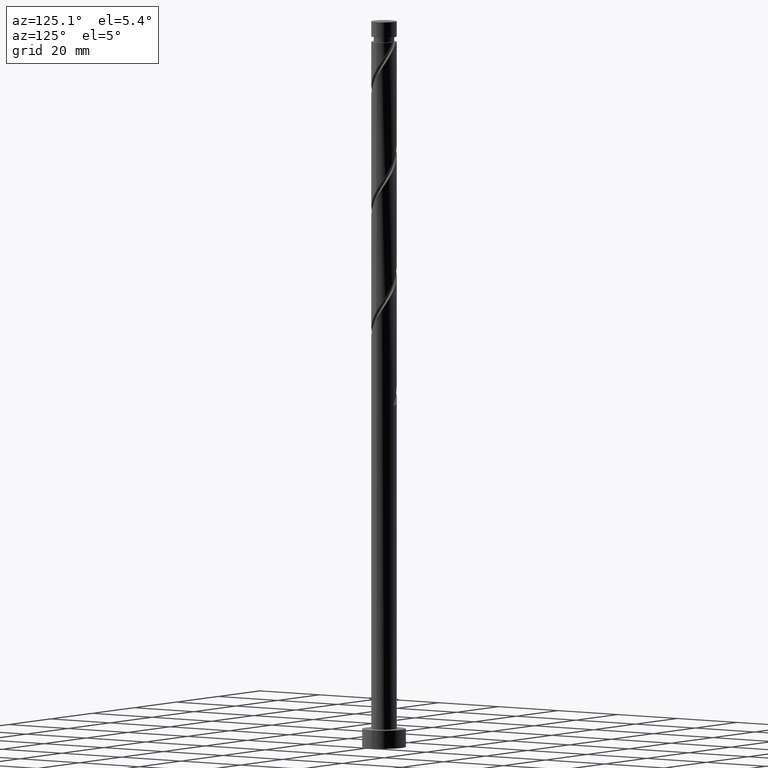
[diagram: clean part render]
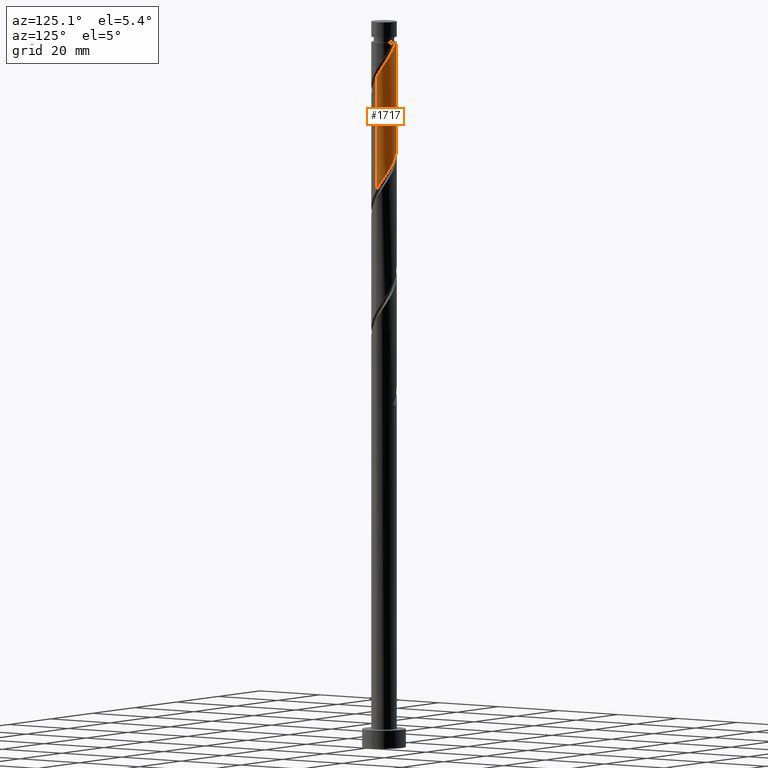
[diagram: same view with one face highlighted and labeled with its STEP entity id]
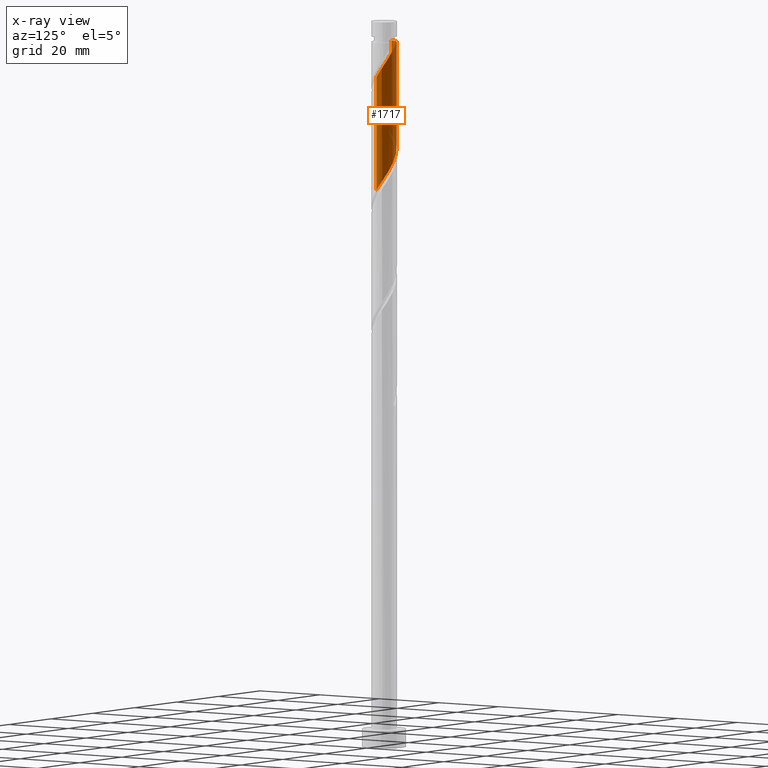
[diagram: x-ray of the same camera — body ghosted, the highlighted face saturated]
A machine part, auxiliary view. The second image highlights one B-rep face of the part: STEP entity #1717.
The next image is the same camera in x-ray: the body ghosted, the highlighted face saturated — about 0% of this face is hidden behind the body in this view.
In plain terms, the highlighted cylindrical surface (edge-blend (fillet) strip) has radius 3.5 mm, axis along (-0, -0, -1).
Its self-contained STEP definition (entity closure, byte-faithful):
#2 = CARTESIAN_POINT ( 'NONE',  ( 3.500000000000000444, 4.994564004169114618E-15, 153.7891649966503280 ) ) ;
#19 = EDGE_CURVE ( 'NONE', #815, #753, #630, .T. ) ;
#26 = ORIENTED_EDGE ( 'NONE', *, *, #19, .F. ) ;
#59 = EDGE_CURVE ( 'NONE', #582, #753, #647, .T. ) ;
#79 = CARTESIAN_POINT ( 'NONE',  ( -3.430000000000000160, 0.6964912059746349859, 169.3922650081069321 ) ) ;
#84 = CARTESIAN_POINT ( 'NONE',  ( 3.500000000000005329, -1.106580048827880409E-15, 184.9953650195635362 ) ) ;
#86 = CARTESIAN_POINT ( 'NONE',  ( -0.6749041013849218507, 3.465086739234107593, 163.1422650081069321 ) ) ;
#94 = DIRECTION ( 'NONE',  ( -0.000000000000000000, -0.000000000000000000, -1.000000000000000000 ) ) ;
#100 = CARTESIAN_POINT ( 'NONE',  ( 3.500000000000000000, 4.286263797015736595E-16, 200.0000000000000000 ) ) ;
#118 = CARTESIAN_POINT ( 'NONE',  ( 3.493390773024161788, 0.2149904810675258293, 154.1144872303291322 ) ) ;
#128 = CARTESIAN_POINT ( 'NONE',  ( 2.318179077886495243, 2.622221531993306431, 158.2811538969957610 ) ) ;
#155 = ORIENTED_EDGE ( 'NONE', *, *, #389, .T. ) ;
#181 = CARTESIAN_POINT ( 'NONE',  ( 2.927415597451915819, 1.972957063972127445, 188.1422650081068753 ) ) ;
#185 = ORIENTED_EDGE ( 'NONE', *, *, #1059, .F. ) ;
#231 = CARTESIAN_POINT ( 'NONE',  ( 3.172338736701779460, 1.548737742842088094, 156.1978205636625034 ) ) ;
#246 = CARTESIAN_POINT ( 'NONE',  ( 3.465086739234108482, 0.6749041013849197412, 154.8089316747736746 ) ) ;
#261 = FACE_OUTER_BOUND ( 'NONE', #1047, .T. ) ;
#291 = CARTESIAN_POINT ( 'NONE',  ( -3.499999999999988454, 0.000000000000000000, 194.3922650081069321 ) ) ;
#326 = CARTESIAN_POINT ( 'NONE',  ( -1.932882604688397787, 2.917869914251318697, 165.2255983414402749 ) ) ;
#339 = AXIS2_PLACEMENT_3D ( 'NONE', #1399, #94, #1250 ) ;
#341 = VECTOR ( 'NONE', #636, 1000.000000000000000 ) ;
#356 = CARTESIAN_POINT ( 'NONE',  ( -0.2149904810675273836, 3.493390773024161788, 162.4478205636625319 ) ) ;
#374 = CARTESIAN_POINT ( 'NONE',  ( 2.663401091800861931, 2.317027466534703262, 157.5867094525513892 ) ) ;
#389 = EDGE_CURVE ( 'NONE', #831, #1733, #1225, .T. ) ;
#398 = DIRECTION ( 'NONE',  ( -0.000000000000000000, -0.000000000000000000, -1.000000000000000000 ) ) ;
#460 = CARTESIAN_POINT ( 'NONE',  ( 3.430000000000005045, 0.6964912059746347639, 186.0589316747736461 ) ) ;
#490 = CARTESIAN_POINT ( 'NONE',  ( -1.548737742842090315, 3.172338736701779016, 164.5311538969958463 ) ) ;
#503 = CARTESIAN_POINT ( 'NONE',  ( -3.132860395318846081, 1.560508168335765333, 168.0033761192180748 ) ) ;
#507 = LINE ( 'NONE', #1727, #341 ) ;
#550 = ORIENTED_EDGE ( 'NONE', *, *, #1146, .F. ) ;
#582 = VERTEX_POINT ( 'NONE', #84 ) ;
#585 = CARTESIAN_POINT ( 'NONE',  ( 3.500000000000005329, -1.106580048827880409E-15, 184.9953650195635362 ) ) ;
#616 = CARTESIAN_POINT ( 'NONE',  ( -3.338305193185782116, 1.148059272699403222, 168.6978205636625319 ) ) ;
#628 = CARTESIAN_POINT ( 'NONE',  ( -0.2449231392498682214, 3.521694806814223089, 193.6978205636625034 ) ) ;
#630 =( BOUNDED_CURVE ( )  B_SPLINE_CURVE ( 2, ( #999, #1705, #79, #616, #503, #1533, #1689, #1698, #326, #490, #757, #86, #356, #893, #1419, #767, #1174, #909, #128, #374, #1712, #231, #670, #246, #118, #1723, #1575 ),
 .UNSPECIFIED., .F., .T. ) 
 B_SPLINE_CURVE_WITH_KNOTS ( ( 3, 2, 2, 2, 2, 2, 2, 2, 2, 2, 2, 2, 2, 3 ),
 ( 0.4295317669814462946, 0.4375000000000000000, 0.4479166666666666852, 0.4583333333333333148, 0.4687500000000000000, 0.4791666666666666852, 0.4895833333333333148, 0.5000000000000000000, 0.5104166666666666297, 0.5208333333333333703, 0.5312500000000000000, 0.5416666666666666297, 0.5520833333333333703, 0.5545317669814462391 ),
 .UNSPECIFIED. ) 
 CURVE ( )  GEOMETRIC_REPRESENTATION_ITEM ( )  RATIONAL_B_SPLINE_CURVE ( ( 0.9062941362546435009, 0.9031415850403476941, 0.9090909090909231605, 0.9013135103398414172, 0.9090909090909231605, 0.9013135103398414172, 0.9090909090909231605, 0.9013135103398414172, 0.9090909090909231605, 0.9013135103398414172, 0.9090909090909231605, 0.9013135103398414172, 0.9090909090909231605, 0.9013135103398414172, 0.9090909090909231605, 0.9013135103398414172, 0.9090909090909231605, 0.9013135103398414172, 0.9090909090909231605, 0.9013135103398414172, 0.9090909090909231605, 0.9013135103398414172, 0.9090909090909231605, 0.9013135103398414172, 0.9090909090909231605, 0.9072628343904168835, 0.9062941362546433899 ) ) 
 REPRESENTATION_ITEM ( '' )  );
#636 = DIRECTION ( 'NONE',  ( -0.000000000000000000, -0.000000000000000000, -1.000000000000000000 ) ) ;
#647 = LINE ( 'NONE', #100, #1307 ) ;
#659 = CARTESIAN_POINT ( 'NONE',  ( -0.6964912059719441384, 3.429999999973235347, 194.3922650081069321 ) ) ;
#670 = CARTESIAN_POINT ( 'NONE',  ( 3.318712737967942861, 1.111820922113503807, 155.5033761192180179 ) ) ;
#753 = VERTEX_POINT ( 'NONE', #2 ) ;
#757 = CARTESIAN_POINT ( 'NONE',  ( -1.111820922113506027, 3.318712737967941973, 163.8367094525513039 ) ) ;
#767 = CARTESIAN_POINT ( 'NONE',  ( 1.148059272699406108, 3.338305193185780340, 160.3644872303291322 ) ) ;
#815 = VERTEX_POINT ( 'NONE', #1331 ) ;
#831 = VERTEX_POINT ( 'NONE', #291 ) ;
#870 = CARTESIAN_POINT ( 'NONE',  ( 1.548737742842094534, 3.172338736701781681, 190.9200427858847036 ) ) ;
#893 = CARTESIAN_POINT ( 'NONE',  ( 0.2449231392498670834, 3.521694806814217760, 161.7533761192180748 ) ) ;
#909 = CARTESIAN_POINT ( 'NONE',  ( 1.972957063972130110, 2.927415597451909601, 158.9755983414402749 ) ) ;
#999 = CARTESIAN_POINT ( 'NONE',  ( -3.500000000000000444, -2.153344959881294868E-15, 170.4558316633169852 ) ) ;
#1006 = CARTESIAN_POINT ( 'NONE',  ( 2.317027466534709923, 2.663401091800861931, 189.5311538969958178 ) ) ;
#1029 = CARTESIAN_POINT ( 'NONE',  ( 0.2149904810675311861, 3.493390773024167117, 193.0033761192180464 ) ) ;
#1047 = EDGE_LOOP ( 'NONE', ( #185, #1628, #26, #550, #155 ) ) ;
#1049 = CYLINDRICAL_SURFACE ( 'NONE', #1421, 3.500000000000000000 ) ;
#1057 = CARTESIAN_POINT ( 'NONE',  ( 0.000000000000000000, 0.000000000000000000, 200.0000000000000000 ) ) ;
#1059 = EDGE_CURVE ( 'NONE', #582, #1733, #1151, .T. ) ;
#1067 = CARTESIAN_POINT ( 'NONE',  ( -0.6964912059719441384, 3.429999999973235347, 194.3922650081069321 ) ) ;
#1118 = CARTESIAN_POINT ( 'NONE',  ( 3.500000000000005329, 0.3517632353407225687, 185.5287913887527793 ) ) ;
#1127 = CARTESIAN_POINT ( 'NONE',  ( 2.622221531993313981, 2.318179077886494799, 188.8367094525513892 ) ) ;
#1146 = EDGE_CURVE ( 'NONE', #831, #815, #507, .T. ) ;
#1151 =( BOUNDED_CURVE ( )  B_SPLINE_CURVE ( 2, ( #585, #1118, #460, #1518, #1383, #181, #1127, #1006, #1668, #870, #1260, #1537, #1029, #628, #659 ),
 .UNSPECIFIED., .F., .T. ) 
 B_SPLINE_CURVE_WITH_KNOTS ( ( 3, 2, 2, 2, 2, 2, 2, 3 ),
 ( 0.6795317669814462391, 0.6875000000000000000, 0.6979166666666667407, 0.7083333333333332593, 0.7187500000000001110, 0.7291666666666668517, 0.7395833333333333703, 0.7500000000000001110 ),
 .UNSPECIFIED. ) 
 CURVE ( )  GEOMETRIC_REPRESENTATION_ITEM ( )  RATIONAL_B_SPLINE_CURVE ( ( 0.9062941362546491630, 0.9031415850403534673, 0.9090909090909288226, 0.9013135103398473014, 0.9090909090909288226, 0.9013135103398473014, 0.9090909090909288226, 0.9013135103398473014, 0.9090909090909288226, 0.9013135103398473014, 0.9090909090909288226, 0.9013135103398473014, 0.9090909090909288226, 0.9013135103398473014, 0.9090909090909288226 ) ) 
 REPRESENTATION_ITEM ( '' )  );
#1174 = CARTESIAN_POINT ( 'NONE',  ( 1.560508168335767554, 3.132860395318845192, 159.6700427858847036 ) ) ;
#1225 = CIRCLE ( 'NONE', #339, 3.499999999999988454 ) ;
#1250 = DIRECTION ( 'NONE',  ( -1.000000000000000000, 0.000000000000000000, 0.000000000000000000 ) ) ;
#1260 = CARTESIAN_POINT ( 'NONE',  ( 1.111820922113510024, 3.318712737967945969, 191.6144872303292175 ) ) ;
#1307 = VECTOR ( 'NONE', #1601, 1000.000000000000000 ) ;
#1331 = CARTESIAN_POINT ( 'NONE',  ( -3.500000000000000444, -2.153344959881294868E-15, 170.4558316633169852 ) ) ;
#1383 = CARTESIAN_POINT ( 'NONE',  ( 3.132860395318852298, 1.560508168335765333, 187.4478205636625034 ) ) ;
#1399 = CARTESIAN_POINT ( 'NONE',  ( 0.000000000000000000, 0.000000000000000000, 194.3922650081069321 ) ) ;
#1419 = CARTESIAN_POINT ( 'NONE',  ( 0.6964912059746355411, 3.430000000000000160, 161.0589316747735893 ) ) ;
#1421 = AXIS2_PLACEMENT_3D ( 'NONE', #1057, #398, #1607 ) ;
#1518 = CARTESIAN_POINT ( 'NONE',  ( 3.338305193185787889, 1.148059272699402333, 186.7533761192180179 ) ) ;
#1533 = CARTESIAN_POINT ( 'NONE',  ( -2.927415597451910934, 1.972957063972127889, 167.3089316747736746 ) ) ;
#1537 = CARTESIAN_POINT ( 'NONE',  ( 0.6749041013849257364, 3.465086739234110702, 192.3089316747735609 ) ) ;
#1575 = CARTESIAN_POINT ( 'NONE',  ( 3.500000000000000888, 4.994564004169114618E-15, 153.7891649966503280 ) ) ;
#1601 = DIRECTION ( 'NONE',  ( -0.000000000000000000, -0.000000000000000000, -1.000000000000000000 ) ) ;
#1607 = DIRECTION ( 'NONE',  ( -1.000000000000000000, 0.000000000000000000, 0.000000000000000000 ) ) ;
#1628 = ORIENTED_EDGE ( 'NONE', *, *, #59, .T. ) ;
#1668 = CARTESIAN_POINT ( 'NONE',  ( 1.932882604688402006, 2.917869914251321806, 190.2255983414402465 ) ) ;
#1689 = CARTESIAN_POINT ( 'NONE',  ( -2.622221531993307764, 2.318179077886493467, 166.6144872303291322 ) ) ;
#1698 = CARTESIAN_POINT ( 'NONE',  ( -2.317027466534704150, 2.663401091800860598, 165.9200427858846751 ) ) ;
#1705 = CARTESIAN_POINT ( 'NONE',  ( -3.500000000000000444, 0.3517632353407264545, 169.9224052941277705 ) ) ;
#1712 = CARTESIAN_POINT ( 'NONE',  ( 2.917869914251318697, 1.932882604688396899, 156.8922650081069321 ) ) ;
#1717 = ADVANCED_FACE ( 'NONE', ( #261 ), #1049, .T. ) ;
#1723 = CARTESIAN_POINT ( 'NONE',  ( 3.500000000000000000, 0.1075968308018582786, 153.9523286846784629 ) ) ;
#1727 = CARTESIAN_POINT ( 'NONE',  ( -3.500000000000000000, 0.000000000000000000, 200.0000000000000000 ) ) ;
#1733 = VERTEX_POINT ( 'NONE', #1067 ) ;